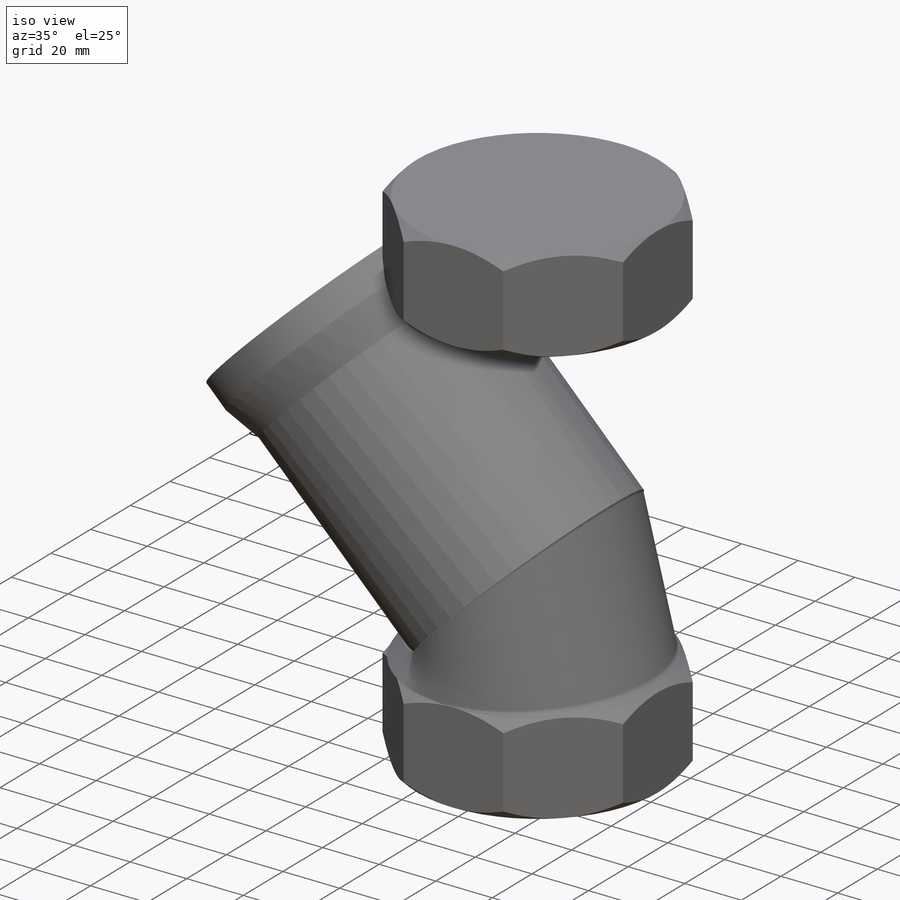
[diagram: iso view]
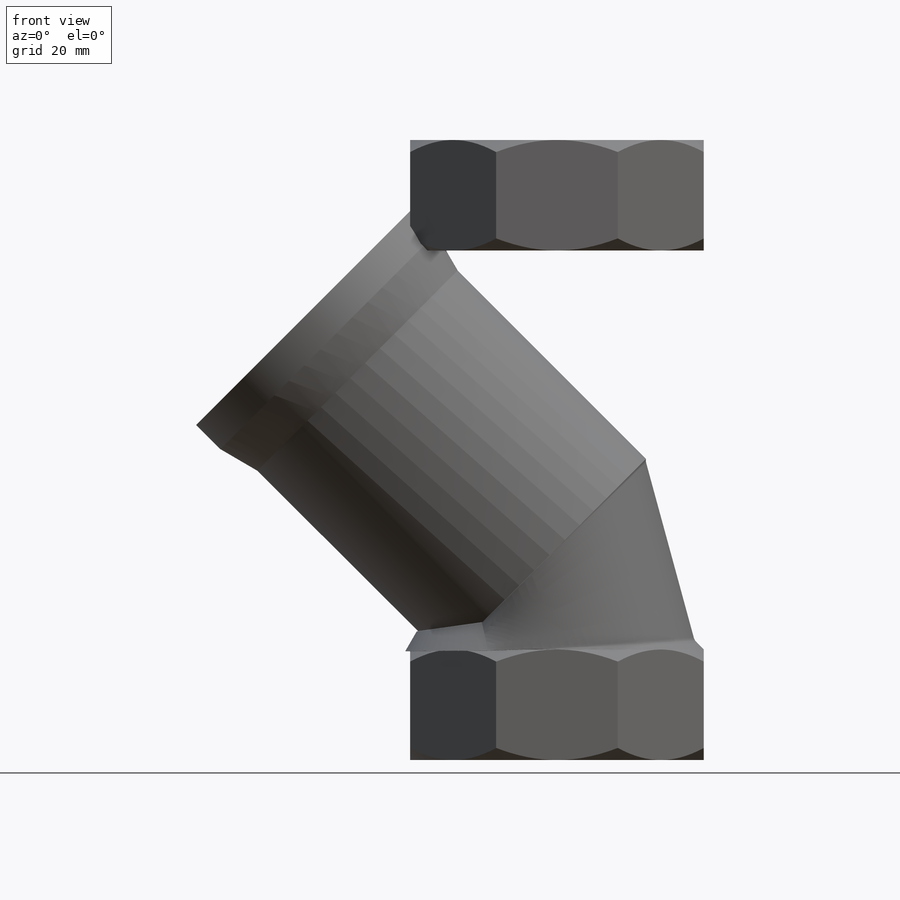
[diagram: front view]
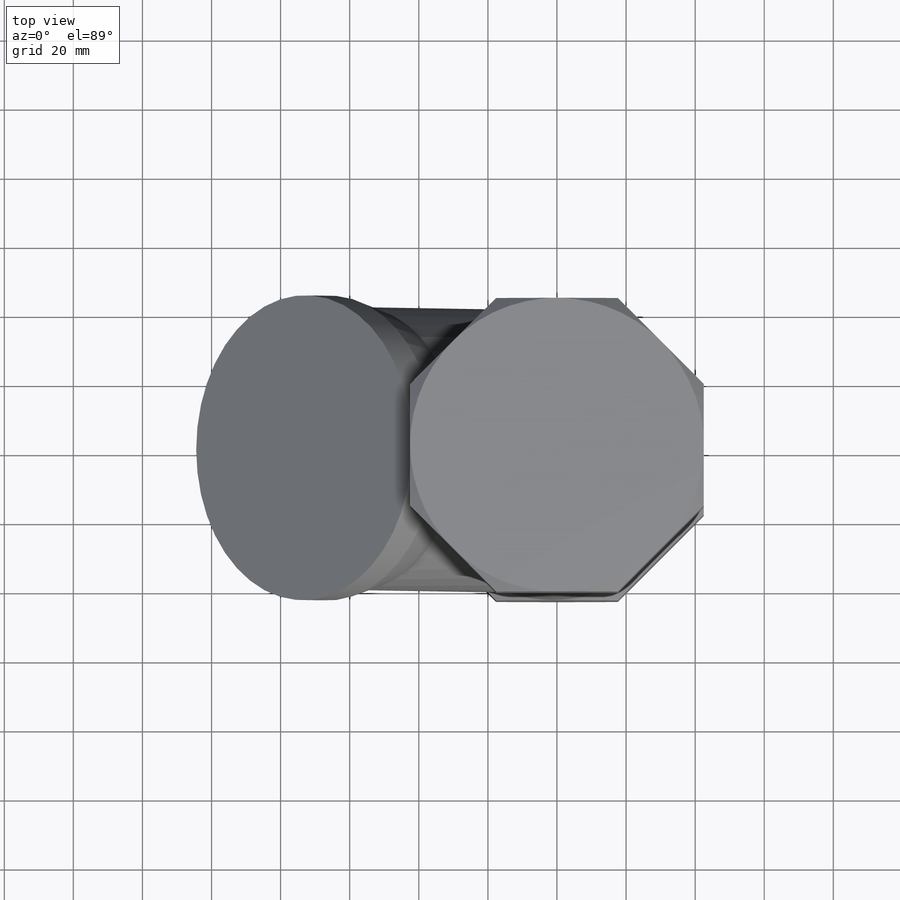
[diagram: top view]
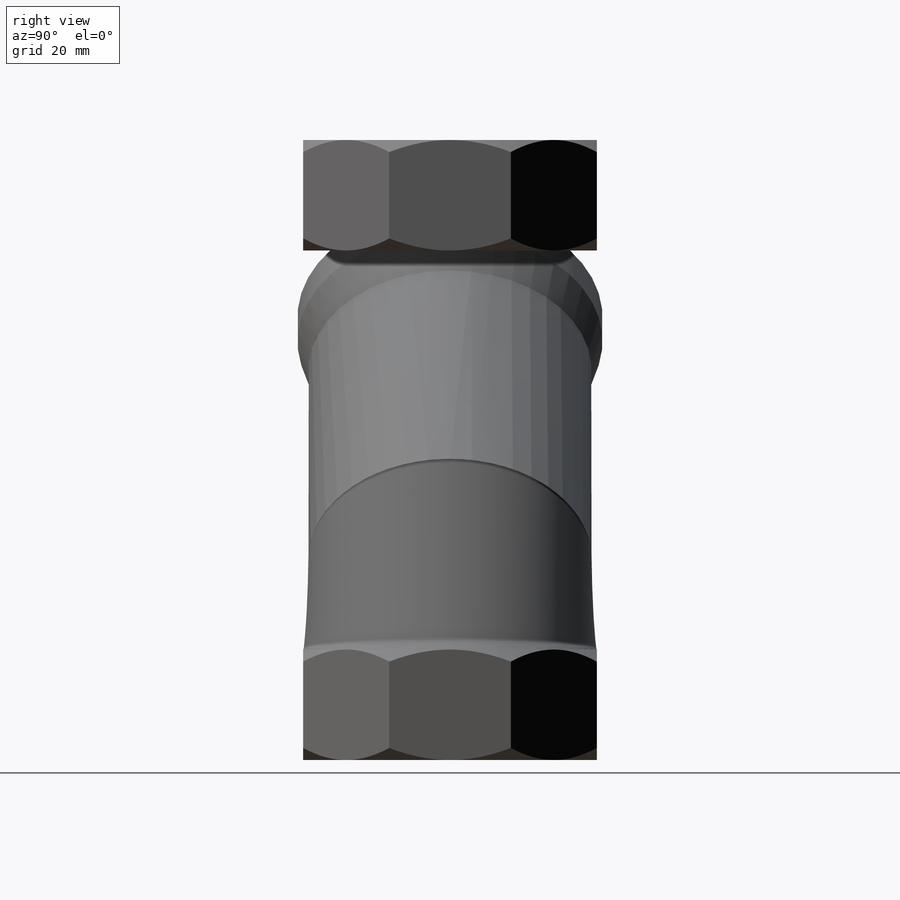
[diagram: right view]
SOLIDWORKS PART (.sldprt)
format: sldprt  version: not decoded by parser v0  size: 475,648 bytes
history: native  units: mm
features: sketch x15, plane x7, extrude x2, cut_revolve x2, revolve x2, material x1, mirror x1, cut_extrude x1 (+8 scaffold rows collapsed)
feature tree (39):
  scaffold x8  (default folders/planes/origin — collapsed)
  material  "Material <nicht festgelegt>"
  plane  "Ebene vorne"
  plane  "Ebene oben"
  plane  "Ebene rechts"
  sketch  "Skizze2"  dims[D1=85.0mm D2=~92.003337mm]
  extrude  "Aufsatz-Linear austragen1"  Depth=32mm
  plane  "Ebene1"  Offset=179.5mm
  sketch  "Skizze3"  dims[D1=85.0mm]
  extrude  "Aufsatz-Linear austragen2"  Depth=32mm
  sketch  "Skizze5"  dims[c1.D1=95.0mm c1.D2=~8.073596mm c2.D2=45.0deg c2.D3=85.0mm]
  cut_revolve  "Schnitt-Rotation1"  Angle=360deg
  plane  "Ebene2"
  mirror  "Spiegeln1"
  sketch  "Skizze7"  dims[c1.D1=95.0mm c1.D2=~10.381547mm c2.D2=45.0deg]
  cut_revolve  "Schnitt-Rotation2"  Angle=360deg
  sketch  "Skizze1"  dims[c1.D1=~231.300783mm c2.D1=45.0deg c2.D2=55.0mm c2.D3=88.3mm c2.D4=82.0mm c2.D5=9.9mm c2.D6=21.9mm c2.D7=97.0mm c2.D8=99.0mm c3.D7=97.0mm]
  revolve  "Rotation1"  Angle=360deg
  sketch  "Skizze6"
  cut_extrude  "Schnitt-Linear austragen3"  [1 undecoded]
  sketch  "Skizze8"
  sketch  "Skizze9"  dims[c1.D1=5.0mm c1.D2=85.0mm c2.D2=8.0deg]
  plane  "Ebene4"
  sketch  "Skizze10"
  plane  "Ebene5"
  sketch  "Skizze12"
  sketch  "Skizze13"  dims[D1=0.0mm]
  sketch  "Skizze15"  dims[c1.D1=2.0mm c1.D3=~3.603989mm c1.D4=3.0mm c1.D2=77.1mm c2.D2=60.0deg c2.D3=85.0mm c3.D3=45.0deg c3.D5=3.0mm]
  sketch  "3D-Skizze1"
  revolve  "3D-Skizze2"  [1 undecoded]
  sketch  "Oberflächenausfüllung3"
  sketch  "Oberflächenausfüllung4"
decode coverage: 13 of 23 modeling features carry decoded parameters
note: ~ marks probable driven/reference dimensions
note: 2 parameter values undecoded
note: suppression state not decoded; provenance and decode notes live in map.json
